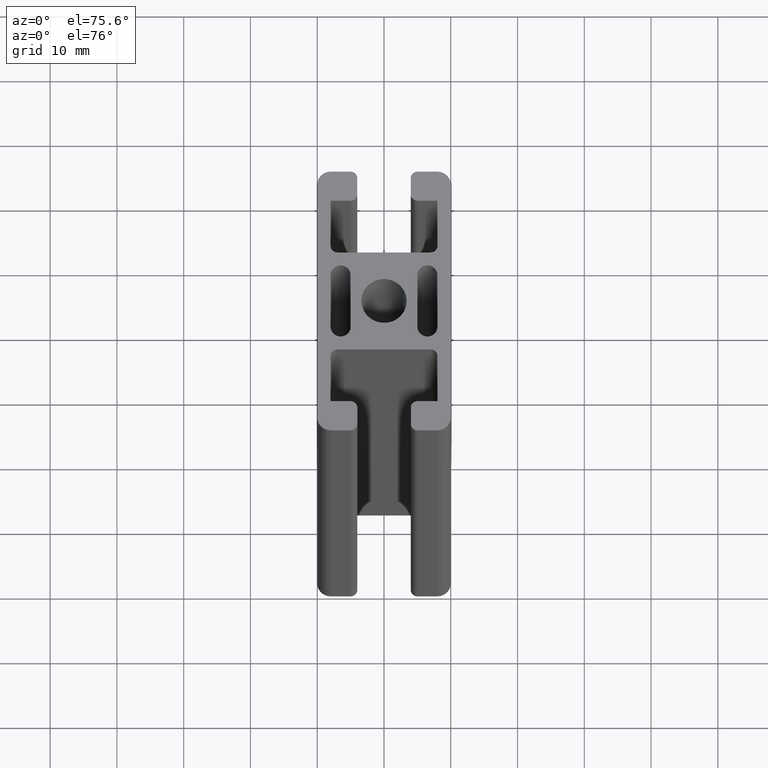
[diagram: clean part render]
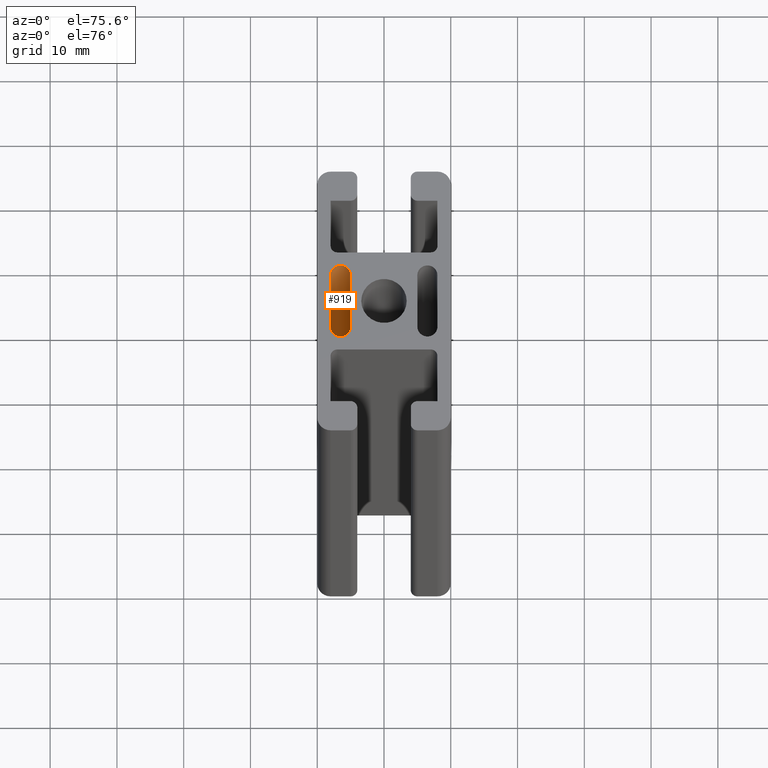
[diagram: same view with one face highlighted and labeled with its STEP entity id]
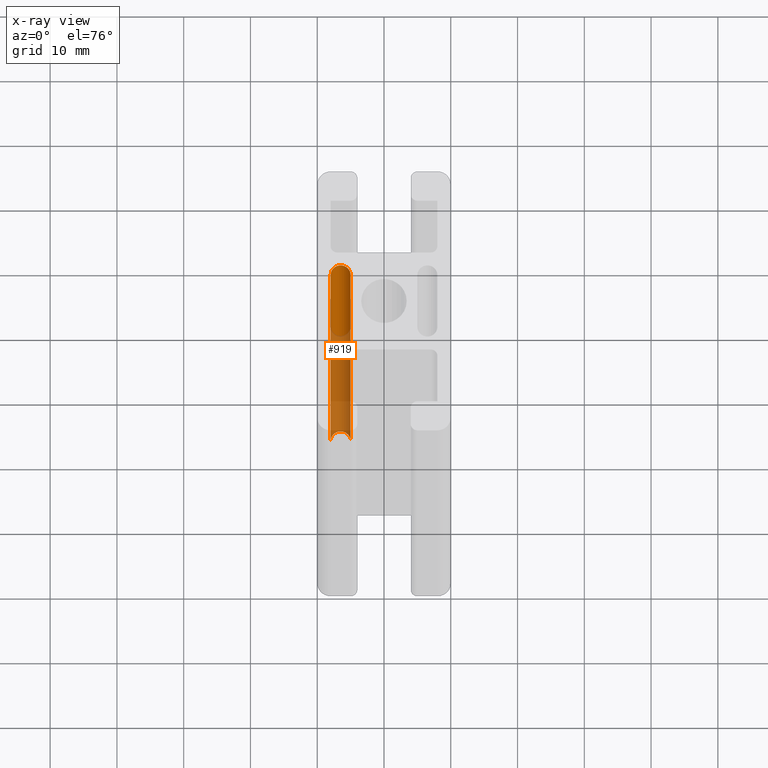
[diagram: x-ray of the same camera — body ghosted, the highlighted face saturated]
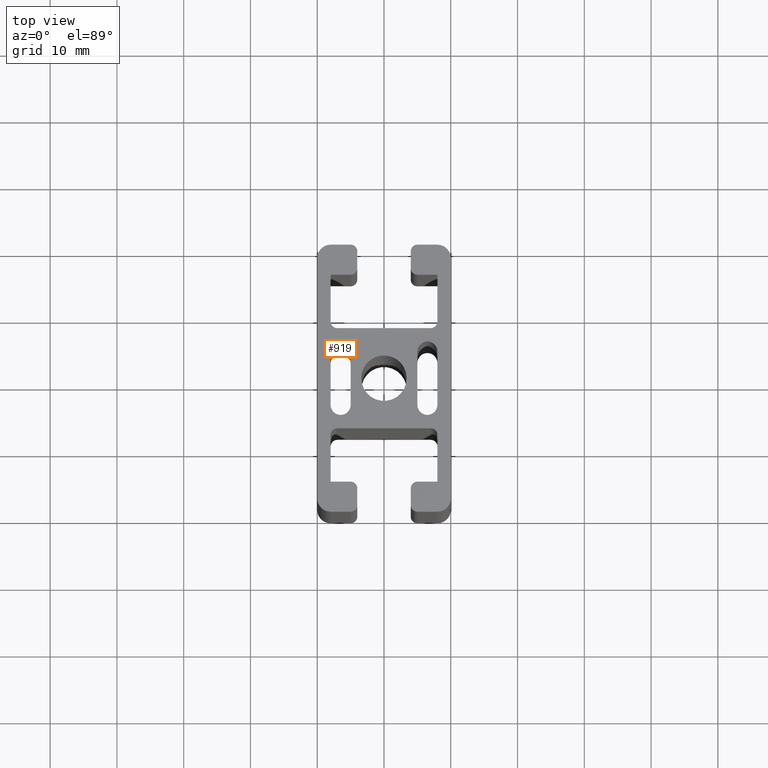
[diagram: same view with one face highlighted and labeled with its STEP entity id]
A machine part, auxiliary view. The second image highlights one B-rep face of the part: STEP entity #919.
The next image is the same camera in x-ray: the body ghosted, the highlighted face saturated — about 60% of this face is hidden behind the body in this view.
A second angle (top view) of the same face is appended — the face is thin or edge-on in the first view.
In plain terms, the highlighted cylindrical surface (edge-blend (fillet) strip) has radius 1.5 mm, axis along (0, 0, 1).
Its self-contained STEP definition (entity closure, byte-faithful):
#79=LINE('',#1495,#171);
#80=LINE('',#1498,#172);
#171=VECTOR('',#1218,100.);
#172=VECTOR('',#1221,100.);
#263=FACE_OUTER_BOUND('',#311,.T.);
#311=EDGE_LOOP('',(#721,#722,#723,#724));
#363=CIRCLE('',#999,1.5);
#364=CIRCLE('',#1000,1.5);
#441=VERTEX_POINT('',#1491);
#442=VERTEX_POINT('',#1492);
#443=VERTEX_POINT('',#1494);
#444=VERTEX_POINT('',#1496);
#559=EDGE_CURVE('',#441,#442,#363,.T.);
#560=EDGE_CURVE('',#443,#441,#79,.T.);
#561=EDGE_CURVE('',#444,#443,#364,.T.);
#562=EDGE_CURVE('',#444,#442,#80,.T.);
#721=ORIENTED_EDGE('',*,*,#559,.F.);
#722=ORIENTED_EDGE('',*,*,#560,.F.);
#723=ORIENTED_EDGE('',*,*,#561,.F.);
#724=ORIENTED_EDGE('',*,*,#562,.T.);
#882=CYLINDRICAL_SURFACE('',#998,1.5);
#919=ADVANCED_FACE('',(#263),#882,.F.);
#998=AXIS2_PLACEMENT_3D('',#1490,#1214,#1215);
#999=AXIS2_PLACEMENT_3D('',#1493,#1216,#1217);
#1000=AXIS2_PLACEMENT_3D('',#1497,#1219,#1220);
#1214=DIRECTION('center_axis',(0.,0.,1.));
#1215=DIRECTION('ref_axis',(1.,0.,0.));
#1216=DIRECTION('center_axis',(0.,0.,-1.));
#1217=DIRECTION('ref_axis',(1.,0.,0.));
#1218=DIRECTION('',(0.,0.,1.));
#1219=DIRECTION('center_axis',(0.,0.,1.));
#1220=DIRECTION('ref_axis',(1.,0.,0.));
#1221=DIRECTION('',(0.,0.,1.));
#1490=CARTESIAN_POINT('Origin',(-6.5,4.,0.));
#1491=CARTESIAN_POINT('',(-8.,4.,100.));
#1492=CARTESIAN_POINT('',(-5.,4.,100.));
#1493=CARTESIAN_POINT('Origin',(-6.5,4.,100.));
#1494=CARTESIAN_POINT('',(-8.,4.,0.));
#1495=CARTESIAN_POINT('',(-8.,4.,0.));
#1496=CARTESIAN_POINT('',(-5.,4.,0.));
#1497=CARTESIAN_POINT('Origin',(-6.5,4.,0.));
#1498=CARTESIAN_POINT('',(-5.,4.,0.));